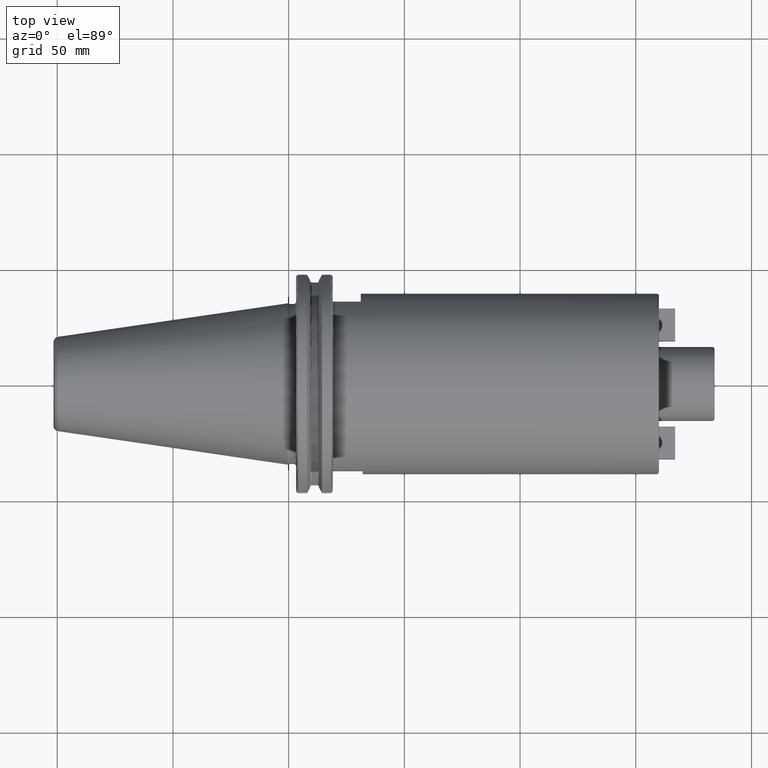
[diagram: clean part render]
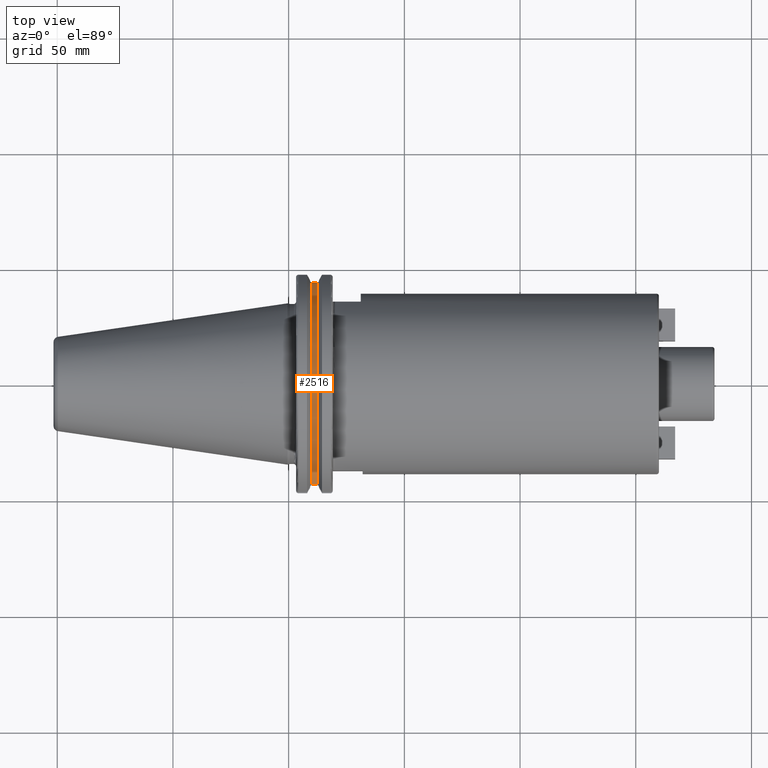
[diagram: same view with one face highlighted and labeled with its STEP entity id]
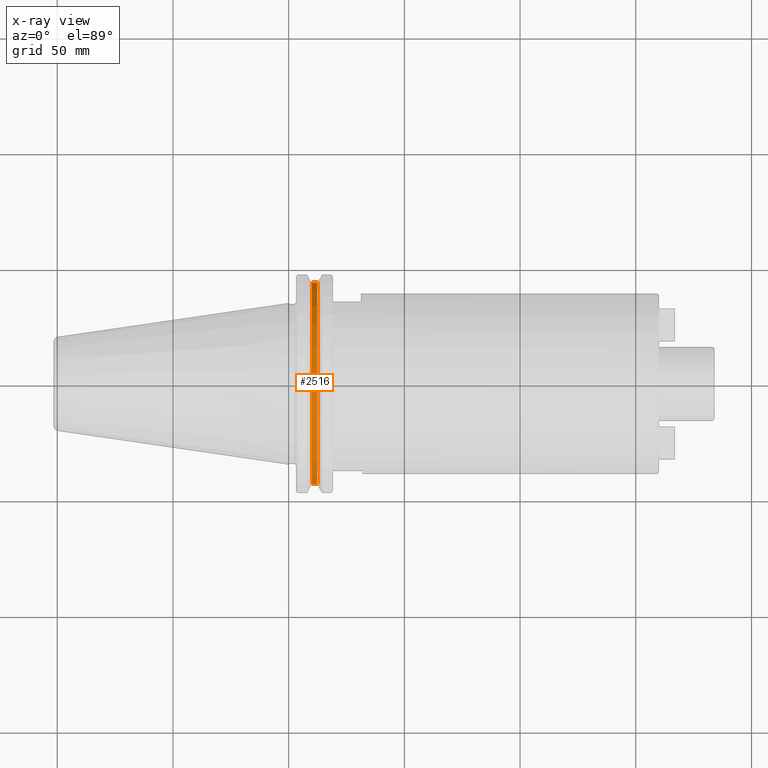
[diagram: x-ray of the same camera — body ghosted, the highlighted face saturated]
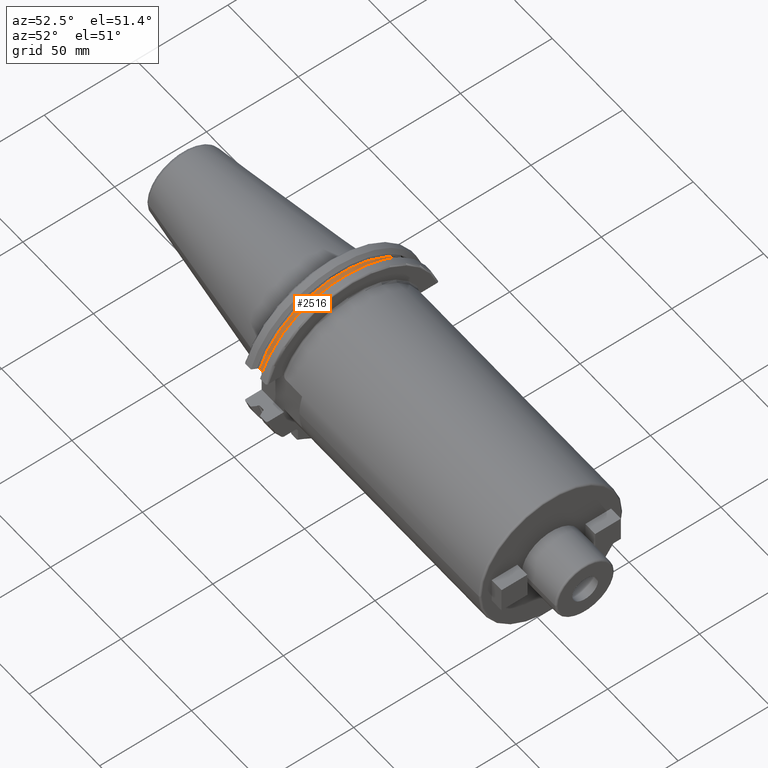
[diagram: same view with one face highlighted and labeled with its STEP entity id]
A machine part, top view. The second image highlights one B-rep face of the part: STEP entity #2516.
The next image is the same camera in x-ray: the body ghosted, the highlighted face saturated — about 0% of this face is hidden behind the body in this view.
A second angle (auxiliary view) of the same face is appended — the face is thin or edge-on in the first view.
In plain terms, the highlighted cylindrical surface (partial cylindrical patch) has radius 45.5 mm, axis along (1, 0, 0).
Its self-contained STEP definition (entity closure, byte-faithful):
#691=CARTESIAN_POINT('',(1.23375E1,0.E0,0.E0));
#692=DIRECTION('',(1.E0,0.E0,0.E0));
#693=DIRECTION('',(0.E0,9.589673631435E-1,2.835164835165E-1));
#694=AXIS2_PLACEMENT_3D('',#691,#692,#693);
#696=DIRECTION('',(1.E0,0.E0,0.E0));
#697=VECTOR('',#696,2.325E0);
#698=CARTESIAN_POINT('',(1.00125E1,4.363301502303E1,1.29E1));
#699=LINE('',#698,#697);
#700=DIRECTION('',(1.E0,0.E0,0.E0));
#701=VECTOR('',#700,2.325E0);
#702=CARTESIAN_POINT('',(1.00125E1,-4.363301502303E1,1.29E1));
#703=LINE('',#702,#701);
#704=CARTESIAN_POINT('',(1.00125E1,0.E0,0.E0));
#705=DIRECTION('',(1.E0,0.E0,0.E0));
#706=DIRECTION('',(0.E0,9.589673631435E-1,2.835164835165E-1));
#707=AXIS2_PLACEMENT_3D('',#704,#705,#706);
#709=CARTESIAN_POINT('',(1.00125E1,4.363301502303E1,1.29E1));
#729=CARTESIAN_POINT('',(1.00125E1,-4.363301502303E1,1.29E1));
#1500=VERTEX_POINT('',#709);
#1501=VERTEX_POINT('',#729);
#1502=CARTESIAN_POINT('',(1.23375E1,4.363301502303E1,1.29E1));
#1503=VERTEX_POINT('',#1502);
#1504=CARTESIAN_POINT('',(1.23375E1,-4.363301502303E1,1.29E1));
#1505=VERTEX_POINT('',#1504);
#2504=CARTESIAN_POINT('',(7.325E0,0.E0,0.E0));
#2505=DIRECTION('',(1.E0,0.E0,0.E0));
#2506=DIRECTION('',(0.E0,-1.E0,0.E0));
#2507=AXIS2_PLACEMENT_3D('',#2504,#2505,#2506);
#2508=CYLINDRICAL_SURFACE('',#2507,4.55E1);
#2509=ORIENTED_EDGE('',*,*,#2357,.T.);
#2510=ORIENTED_EDGE('',*,*,#2499,.T.);
#2511=ORIENTED_EDGE('',*,*,#2034,.F.);
#2513=ORIENTED_EDGE('',*,*,#2512,.F.);
#2514=EDGE_LOOP('',(#2509,#2510,#2511,#2513));
#2515=FACE_OUTER_BOUND('',#2514,.F.);
#2516=ADVANCED_FACE('',(#2515),#2508,.T.);
#695=CIRCLE('',#694,4.55E1);
#708=CIRCLE('',#707,4.55E1);
#2034=EDGE_CURVE('',#1501,#1505,#703,.T.);
#2357=EDGE_CURVE('',#1500,#1503,#699,.T.);
#2499=EDGE_CURVE('',#1503,#1505,#695,.T.);
#2512=EDGE_CURVE('',#1500,#1501,#708,.T.);